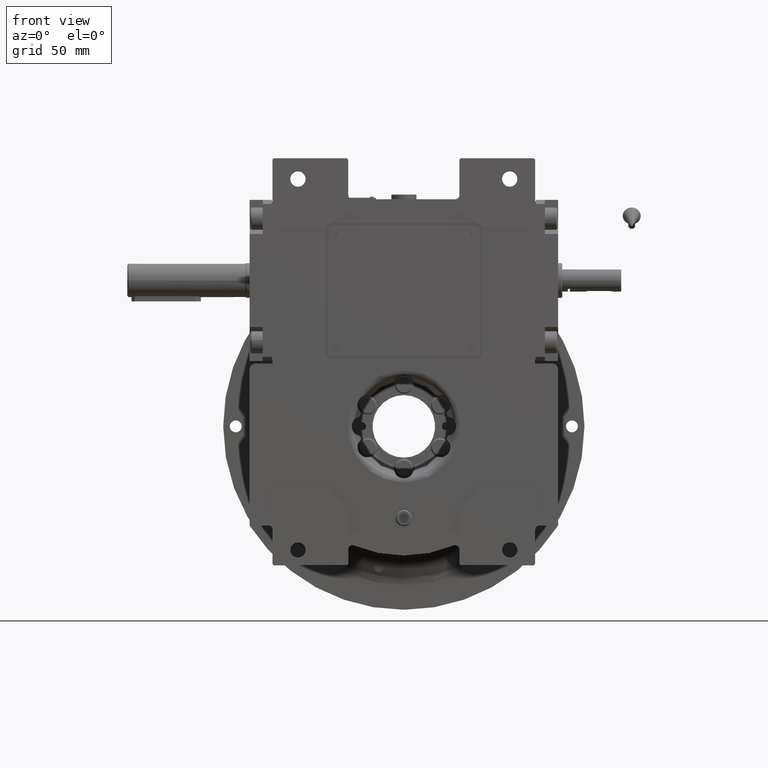
[diagram: clean part render]
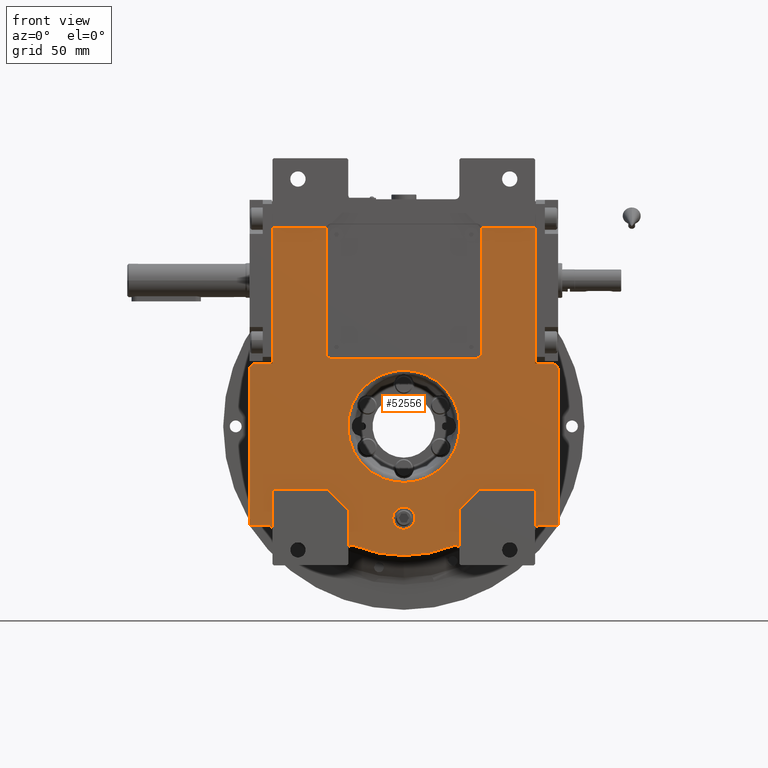
[diagram: same view with one face highlighted and labeled with its STEP entity id]
A machine part, front view. The second image highlights one B-rep face of the part: STEP entity #52556.
In plain terms, the highlighted planar face has unit normal (0, 1, 0).
Its self-contained STEP definition (entity closure, byte-faithful):
#14 = ORIENTED_EDGE ( 'NONE', *, *, #56504, .F. ) ;
#22 = CARTESIAN_POINT ( 'NONE',  ( -55.00000000000000000, -53.50000000000000000, -45.00000000000000000 ) ) ;
#26 = CARTESIAN_POINT ( 'NONE',  ( -40.00000000000000000, -53.50000000000000000, -88.58329413608420566 ) ) ;
#58 = VERTEX_POINT ( 'NONE', #35674 ) ;
#69 = EDGE_CURVE ( 'NONE', #64096, #28792, #26748, .T. ) ;
#255 = EDGE_CURVE ( 'NONE', #15879, #31343, #69145, .T. ) ;
#269 = CARTESIAN_POINT ( 'NONE',  ( 80.61913312125007280, -53.49999999999999289, -40.30955543265933727 ) ) ;
#311 = EDGE_CURVE ( 'NONE', #6843, #66975, #56473, .T. ) ;
#429 = EDGE_CURVE ( 'NONE', #57692, #28518, #12258, .T. ) ;
#553 = DIRECTION ( 'NONE',  ( 1.000000000000000000, 0.000000000000000000, 0.000000000000000000 ) ) ;
#784 = CARTESIAN_POINT ( 'NONE',  ( -94.50000000000000000, -53.50000000000000000, 143.0000000000000000 ) ) ;
#873 = CARTESIAN_POINT ( 'NONE',  ( 55.87298334620739837, -53.50000000000000000, 143.0000000000000000 ) ) ;
#1946 = VECTOR ( 'NONE', #48888, 1000.000000000000000 ) ;
#2247 = CIRCLE ( 'NONE', #14624, 8.000000000000000000 ) ;
#2671 = CARTESIAN_POINT ( 'NONE',  ( -94.50000000000000000, -53.50000000000000000, 143.0000000000000000 ) ) ;
#2685 = ORIENTED_EDGE ( 'NONE', *, *, #255, .T. ) ;
#2791 = ORIENTED_EDGE ( 'NONE', *, *, #37676, .F. ) ;
#2915 = EDGE_LOOP ( 'NONE', ( #6769, #38429, #18307, #58344, #7667, #17268, #60224, #42554, #39544, #15284, #30005, #10018, #37609, #19263, #47317, #2685, #30160, #44794, #14, #2791, #32277, #13685, #13972, #32912, #22061, #42801, #59138, #20429, #36277, #44545, #30306, #14693 ) ) ;
#3160 = DIRECTION ( 'NONE',  ( -3.469446951953617344E-15, 0.000000000000000000, 1.000000000000000000 ) ) ;
#3258 = DIRECTION ( 'NONE',  ( 0.000000000000000000, 0.000000000000000000, -1.000000000000000000 ) ) ;
#3777 = VERTEX_POINT ( 'NONE', #24952 ) ;
#4493 = CARTESIAN_POINT ( 'NONE',  ( -94.50000000000000000, -53.50000000000000000, 45.00000000000000000 ) ) ;
#4536 = DIRECTION ( 'NONE',  ( 0.000000000000000000, -1.000000000000000000, 0.000000000000000000 ) ) ;
#5000 = EDGE_CURVE ( 'NONE', #64902, #67322, #51930, .T. ) ;
#5072 = DIRECTION ( 'NONE',  ( -0.3854166666666672403, 0.000000000000000000, -0.9227426472508764022 ) ) ;
#5321 = DIRECTION ( 'NONE',  ( 1.000000000000000000, 0.000000000000000000, 0.000000000000000000 ) ) ;
#5530 = CARTESIAN_POINT ( 'NONE',  ( -1.264761546777279996E-10, -53.50000000000000000, 40.30959420574835406 ) ) ;
#5677 = CARTESIAN_POINT ( 'NONE',  ( 94.50000000000000000, -53.50000000000000000, 45.00000000000000000 ) ) ;
#5702 = AXIS2_PLACEMENT_3D ( 'NONE', #68303, #13867, #3258 ) ;
#5874 = LINE ( 'NONE', #53345, #45240 ) ;
#5944 = CARTESIAN_POINT ( 'NONE',  ( 0.000000000000000000, -53.50000000000000000, 0.000000000000000000 ) ) ;
#6124 = VERTEX_POINT ( 'NONE', #21029 ) ;
#6371 = CARTESIAN_POINT ( 'NONE',  ( -107.0000000000000000, -53.50000000000000000, 45.00000000000000000 ) ) ;
#6597 = AXIS2_PLACEMENT_3D ( 'NONE', #25558, #26256, #52278 ) ;
#6769 = ORIENTED_EDGE ( 'NONE', *, *, #47731, .F. ) ;
#6843 = VERTEX_POINT ( 'NONE', #66082 ) ;
#7371 = VECTOR ( 'NONE', #10866, 1000.000000000000000 ) ;
#7667 = ORIENTED_EDGE ( 'NONE', *, *, #23091, .F. ) ;
#7956 = DIRECTION ( 'NONE',  ( -1.000000000000000000, 0.000000000000000000, 0.000000000000000000 ) ) ;
#8343 = ORIENTED_EDGE ( 'NONE', *, *, #45667, .T. ) ;
#8453 = CARTESIAN_POINT ( 'NONE',  ( -97.50000000000000000, -53.50000000000000000, -74.43528539874409944 ) ) ;
#8794 = DIRECTION ( 'NONE',  ( -1.000000000000000000, 0.000000000000000000, 1.734723475976808672E-15 ) ) ;
#8969 = VERTEX_POINT ( 'NONE', #69517 ) ;
#9081 = VECTOR ( 'NONE', #45423, 1000.000000000000000 ) ;
#9098 = DIRECTION ( 'NONE',  ( -0.7071067811865474617, 0.000000000000000000, -0.7071067811865474617 ) ) ;
#9841 = CARTESIAN_POINT ( 'NONE',  ( -94.50000000000000000, -53.50000000000000000, -45.00000000000000000 ) ) ;
#9882 = DIRECTION ( 'NONE',  ( -0.3854166666666676289, 0.000000000000000000, 0.9227426472508761801 ) ) ;
#10018 = ORIENTED_EDGE ( 'NONE', *, *, #63386, .F. ) ;
#10152 = VECTOR ( 'NONE', #62166, 1000.000000000000000 ) ;
#10518 = CARTESIAN_POINT ( 'NONE',  ( -51.99999999999900524, -53.50000000000000000, 142.0000000000000000 ) ) ;
#10589 = LINE ( 'NONE', #54164, #1946 ) ;
#10866 = DIRECTION ( 'NONE',  ( 0.000000000000000000, 0.000000000000000000, -1.000000000000000000 ) ) ;
#11921 = EDGE_CURVE ( 'NONE', #43197, #18846, #25990, .T. ) ;
#11977 = CARTESIAN_POINT ( 'NONE',  ( -52.00000000000000000, -53.50000000000000000, 49.00000000000000000 ) ) ;
#12258 = LINE ( 'NONE', #21762, #48945 ) ;
#12360 = DIRECTION ( 'NONE',  ( 0.000000000000000000, 1.000000000000000000, 0.000000000000000000 ) ) ;
#12486 = DIRECTION ( 'NONE',  ( 0.000000000000000000, 0.000000000000000000, 1.000000000000000000 ) ) ;
#12765 = VECTOR ( 'NONE', #67526, 1000.000000000000114 ) ;
#13089 = LINE ( 'NONE', #46096, #33932 ) ;
#13386 = LINE ( 'NONE', #11977, #42911 ) ;
#13396 = EDGE_CURVE ( 'NONE', #14154, #43197, #10589, .T. ) ;
#13685 = ORIENTED_EDGE ( 'NONE', *, *, #29331, .F. ) ;
#13867 = DIRECTION ( 'NONE',  ( 0.000000000000000000, -1.000000000000000000, 0.000000000000000000 ) ) ;
#13972 = ORIENTED_EDGE ( 'NONE', *, *, #50986, .T. ) ;
#14154 = VERTEX_POINT ( 'NONE', #873 ) ;
#14205 = CARTESIAN_POINT ( 'NONE',  ( 40.00000000000000000, -53.50000000000000000, -88.58329413608420566 ) ) ;
#14400 = LINE ( 'NONE', #57275, #26482 ) ;
#14623 = CARTESIAN_POINT ( 'NONE',  ( 1.421085471520200056E-14, -53.50000000000000000, -4.263256414560599853E-14 ) ) ;
#14624 = AXIS2_PLACEMENT_3D ( 'NONE', #42636, #35378, #7956 ) ;
#14637 = CARTESIAN_POINT ( 'NONE',  ( -1.264761546777279996E-10, -53.50000000000000000, 40.30959420574835406 ) ) ;
#14656 = DIRECTION ( 'NONE',  ( 1.000000000000000000, 0.000000000000000000, 1.387778780781246883E-14 ) ) ;
#14693 = ORIENTED_EDGE ( 'NONE', *, *, #44663, .F. ) ;
#14805 = DIRECTION ( 'NONE',  ( 0.000000000000000000, -1.000000000000000000, 0.000000000000000000 ) ) ;
#14869 = VECTOR ( 'NONE', #47401, 1000.000000000000000 ) ;
#15012 = CARTESIAN_POINT ( 'NONE',  ( -94.50000000000000000, -53.50000000000000000, -45.00000000000000000 ) ) ;
#15142 = DIRECTION ( 'NONE',  ( 0.000000000000000000, 0.000000000000000000, -1.000000000000000000 ) ) ;
#15284 = ORIENTED_EDGE ( 'NONE', *, *, #18270, .T. ) ;
#15347 = DIRECTION ( 'NONE',  ( 0.000000000000000000, -1.000000000000000000, 0.000000000000000000 ) ) ;
#15605 = CARTESIAN_POINT ( 'NONE',  ( 40.00000000000000000, -53.50000000000000000, -60.00000000000000000 ) ) ;
#15879 = VERTEX_POINT ( 'NONE', #26 ) ;
#16276 = CARTESIAN_POINT ( 'NONE',  ( 94.50000000000000000, -53.50000000000000000, -45.00000000000000000 ) ) ;
#17268 = ORIENTED_EDGE ( 'NONE', *, *, #68575, .F. ) ;
#17509 = EDGE_CURVE ( 'NONE', #15879, #19854, #25926, .T. ) ;
#17749 = CARTESIAN_POINT ( 'NONE',  ( -1.264761546777279996E-10, -53.50000000000000000, 40.30959420574835406 ) ) ;
#17958 = EDGE_CURVE ( 'NONE', #62111, #29963, #2247, .T. ) ;
#18270 = EDGE_CURVE ( 'NONE', #26042, #43378, #66842, .T. ) ;
#18307 = ORIENTED_EDGE ( 'NONE', *, *, #311, .F. ) ;
#18839 = VERTEX_POINT ( 'NONE', #23866 ) ;
#18846 = VERTEX_POINT ( 'NONE', #62861 ) ;
#19131 = CARTESIAN_POINT ( 'NONE',  ( -40.00000000000000000, -53.50000000000000000, -60.00000000000000000 ) ) ;
#19263 = ORIENTED_EDGE ( 'NONE', *, *, #69147, .F. ) ;
#19436 = VECTOR ( 'NONE', #51630, 1000.000000000000000 ) ;
#19663 = LINE ( 'NONE', #19997, #19436 ) ;
#19854 = VERTEX_POINT ( 'NONE', #19131 ) ;
#19997 = CARTESIAN_POINT ( 'NONE',  ( 94.50000000000000000, -53.50000000000000000, -74.43528539874399996 ) ) ;
#20012 = DIRECTION ( 'NONE',  ( -0.9682458365518610277, 0.000000000000000000, 0.2499999999999737432 ) ) ;
#20054 = DIRECTION ( 'NONE',  ( 0.000000000000000000, -1.000000000000000000, 0.000000000000000000 ) ) ;
#20328 = CIRCLE ( 'NONE', #5702, 3.999999999999996447 ) ;
#20423 =( BOUNDED_CURVE ( )  B_SPLINE_CURVE ( 3, ( #33581, #44483, #65889, #17749 ),
 .UNSPECIFIED., .F., .F. ) 
 B_SPLINE_CURVE_WITH_KNOTS ( ( 4, 4 ),
 ( 1.432582689913126872, 4.574174019572492256 ),
 .UNSPECIFIED. ) 
 CURVE ( )  GEOMETRIC_REPRESENTATION_ITEM ( )  RATIONAL_B_SPLINE_CURVE ( ( 1.000000000000000000, 0.3333337746434759108, 0.3333337746434759108, 1.000000000000000000 ) ) 
 REPRESENTATION_ITEM ( '' )  );
#20429 = ORIENTED_EDGE ( 'NONE', *, *, #11921, .F. ) ;
#20729 = CARTESIAN_POINT ( 'NONE',  ( 94.50000000000000000, -53.50000000000000000, 143.0000000000000000 ) ) ;
#21029 = CARTESIAN_POINT ( 'NONE',  ( 52.00000000000000000, -53.50000000000000000, 49.00000000000000000 ) ) ;
#21084 = PLANE ( 'NONE',  #61606 ) ;
#21362 = DIRECTION ( 'NONE',  ( 0.000000000000000000, 0.000000000000000000, -1.000000000000000000 ) ) ;
#21737 = CARTESIAN_POINT ( 'NONE',  ( 1.264666971694413862E-10, -53.50000000000000000, -40.30959420574829721 ) ) ;
#21762 = CARTESIAN_POINT ( 'NONE',  ( 97.50000000000000000, -53.50000000000000000, -71.43528539874399996 ) ) ;
#22061 = ORIENTED_EDGE ( 'NONE', *, *, #47032, .T. ) ;
#22364 = CIRCLE ( 'NONE', #31366, 92.99999999999995737 ) ;
#22681 = CARTESIAN_POINT ( 'NONE',  ( 8.000000000000000000, -53.50000000000000000, -66.00000000000000000 ) ) ;
#23009 = LINE ( 'NONE', #45186, #41364 ) ;
#23091 = EDGE_CURVE ( 'NONE', #59107, #8969, #48981, .T. ) ;
#23574 = DIRECTION ( 'NONE',  ( 0.000000000000000000, 0.000000000000000000, 1.000000000000000000 ) ) ;
#23866 = CARTESIAN_POINT ( 'NONE',  ( 55.00000000000000000, -53.50000000000000000, -45.00000000000000000 ) ) ;
#24223 = VERTEX_POINT ( 'NONE', #62040 ) ;
#24559 = AXIS2_PLACEMENT_3D ( 'NONE', #57320, #20054, #8794 ) ;
#24952 = CARTESIAN_POINT ( 'NONE',  ( 107.0000000000000000, -53.50000000000000000, 45.00000000000000000 ) ) ;
#25340 = AXIS2_PLACEMENT_3D ( 'NONE', #47785, #69211, #53056 ) ;
#25558 = CARTESIAN_POINT ( 'NONE',  ( 97.50000000000000000, -53.50000000000000000, -74.43528539874399996 ) ) ;
#25926 = LINE ( 'NONE', #52638, #10152 ) ;
#25986 = ORIENTED_EDGE ( 'NONE', *, *, #68121, .F. ) ;
#25990 = LINE ( 'NONE', #20729, #59114 ) ;
#26042 = VERTEX_POINT ( 'NONE', #54648 ) ;
#26256 = DIRECTION ( 'NONE',  ( 0.000000000000000000, 1.000000000000000000, 0.000000000000000000 ) ) ;
#26434 = DIRECTION ( 'NONE',  ( 0.000000000000000000, -1.000000000000000000, 0.000000000000000000 ) ) ;
#26482 = VECTOR ( 'NONE', #9098, 1000.000000000000114 ) ;
#26654 = DIRECTION ( 'NONE',  ( 0.000000000000000000, 0.000000000000000000, -1.000000000000000000 ) ) ;
#26748 = LINE ( 'NONE', #22, #63495 ) ;
#26814 = DIRECTION ( 'NONE',  ( 1.000000000000000000, 0.000000000000000000, 0.000000000000000000 ) ) ;
#27400 = FACE_BOUND ( 'NONE', #52387, .T. ) ;
#27459 = DIRECTION ( 'NONE',  ( -1.000000000000000000, 0.000000000000000000, 0.000000000000000000 ) ) ;
#27501 = LINE ( 'NONE', #16276, #37659 ) ;
#27628 = CARTESIAN_POINT ( 'NONE',  ( -107.0000000000000000, -53.50000000000000000, 45.00000000000000000 ) ) ;
#28128 = DIRECTION ( 'NONE',  ( 1.000000000000000000, 0.000000000000000000, 0.000000000000000000 ) ) ;
#28518 = VERTEX_POINT ( 'NONE', #49831 ) ;
#28526 = CARTESIAN_POINT ( 'NONE',  ( -97.50000000000000000, -53.50000000000000000, -71.43528539874409944 ) ) ;
#28792 = VERTEX_POINT ( 'NONE', #15012 ) ;
#28857 = EDGE_CURVE ( 'NONE', #58, #14154, #54160, .T. ) ;
#28867 = ORIENTED_EDGE ( 'NONE', *, *, #37877, .T. ) ;
#28913 = AXIS2_PLACEMENT_3D ( 'NONE', #10518, #4536, #20012 ) ;
#28939 = VERTEX_POINT ( 'NONE', #62326 ) ;
#29331 = EDGE_CURVE ( 'NONE', #54028, #64544, #19663, .T. ) ;
#29464 = AXIS2_PLACEMENT_3D ( 'NONE', #31653, #14805, #52736 ) ;
#29603 = CARTESIAN_POINT ( 'NONE',  ( 97.50000000000000000, -53.50000000000000000, -71.43528539874399996 ) ) ;
#29963 = VERTEX_POINT ( 'NONE', #22681 ) ;
#30005 = ORIENTED_EDGE ( 'NONE', *, *, #66464, .T. ) ;
#30160 = ORIENTED_EDGE ( 'NONE', *, *, #52888, .T. ) ;
#30306 = ORIENTED_EDGE ( 'NONE', *, *, #62020, .F. ) ;
#30608 = CIRCLE ( 'NONE', #29464, 8.000000000000000000 ) ;
#30628 = AXIS2_PLACEMENT_3D ( 'NONE', #62578, #57317, #3160 ) ;
#31343 = VERTEX_POINT ( 'NONE', #39933 ) ;
#31366 = AXIS2_PLACEMENT_3D ( 'NONE', #14623, #37096, #5072 ) ;
#31653 = CARTESIAN_POINT ( 'NONE',  ( 8.881784197001250351E-16, -53.50000000000000000, -66.00000000000000000 ) ) ;
#32277 = ORIENTED_EDGE ( 'NONE', *, *, #36741, .F. ) ;
#32912 = ORIENTED_EDGE ( 'NONE', *, *, #429, .T. ) ;
#32973 = VERTEX_POINT ( 'NONE', #34589 ) ;
#33045 = DIRECTION ( 'NONE',  ( 1.000000000000000000, 0.000000000000000000, 0.000000000000000000 ) ) ;
#33581 = CARTESIAN_POINT ( 'NONE',  ( 1.264666971694413862E-10, -53.50000000000000000, -40.30959420574829721 ) ) ;
#33932 = VECTOR ( 'NONE', #34177, 1000.000000000000000 ) ;
#34177 = DIRECTION ( 'NONE',  ( 0.000000000000000000, 0.000000000000000000, -1.000000000000000000 ) ) ;
#34589 = CARTESIAN_POINT ( 'NONE',  ( 1.264666971694413862E-10, -53.50000000000000000, -40.30959420574829721 ) ) ;
#34888 = AXIS2_PLACEMENT_3D ( 'NONE', #8453, #12360, #23574 ) ;
#35140 = CARTESIAN_POINT ( 'NONE',  ( 94.50000000000000000, -53.50000000000000000, -74.43528539874399996 ) ) ;
#35378 = DIRECTION ( 'NONE',  ( 0.000000000000000000, -1.000000000000000000, 0.000000000000000000 ) ) ;
#35420 = EDGE_LOOP ( 'NONE', ( #25986, #39771 ) ) ;
#35443 = EDGE_CURVE ( 'NONE', #28939, #3777, #45685, .T. ) ;
#35674 = CARTESIAN_POINT ( 'NONE',  ( 56.00000000000000000, -53.50000000000000000, 142.0000000000000000 ) ) ;
#35725 = VECTOR ( 'NONE', #5321, 1000.000000000000000 ) ;
#36277 = ORIENTED_EDGE ( 'NONE', *, *, #13396, .F. ) ;
#36741 = EDGE_CURVE ( 'NONE', #64544, #18839, #27501, .T. ) ;
#36947 = VECTOR ( 'NONE', #553, 1000.000000000000000 ) ;
#37096 = DIRECTION ( 'NONE',  ( 0.000000000000000000, -1.000000000000000000, 0.000000000000000000 ) ) ;
#37117 = CARTESIAN_POINT ( 'NONE',  ( -94.50000000000000000, -53.50000000000000000, 45.00000000000000000 ) ) ;
#37609 = ORIENTED_EDGE ( 'NONE', *, *, #69, .F. ) ;
#37659 = VECTOR ( 'NONE', #68743, 1000.000000000000000 ) ;
#37676 = EDGE_CURVE ( 'NONE', #18839, #46911, #14400, .T. ) ;
#37702 = CARTESIAN_POINT ( 'NONE',  ( 107.0000000000000000, -53.50000000000000000, 41.00000000000000000 ) ) ;
#37877 = EDGE_CURVE ( 'NONE', #68872, #32973, #63935, .T. ) ;
#37900 = CIRCLE ( 'NONE', #28913, 4.000000000000978773 ) ;
#38429 = ORIENTED_EDGE ( 'NONE', *, *, #52330, .F. ) ;
#39078 = EDGE_CURVE ( 'NONE', #8969, #6843, #37900, .T. ) ;
#39544 = ORIENTED_EDGE ( 'NONE', *, *, #67868, .T. ) ;
#39771 = ORIENTED_EDGE ( 'NONE', *, *, #17958, .F. ) ;
#39933 = CARTESIAN_POINT ( 'NONE',  ( -35.84375000000000000, -53.50000000000000000, -85.81506619433150718 ) ) ;
#41364 = VECTOR ( 'NONE', #12486, 1000.000000000000000 ) ;
#42059 = VERTEX_POINT ( 'NONE', #51664 ) ;
#42265 = AXIS2_PLACEMENT_3D ( 'NONE', #37702, #26434, #59467 ) ;
#42554 = ORIENTED_EDGE ( 'NONE', *, *, #5000, .T. ) ;
#42636 = CARTESIAN_POINT ( 'NONE',  ( -8.881784197001250351E-16, -53.50000000000000000, -66.00000000000000000 ) ) ;
#42801 = ORIENTED_EDGE ( 'NONE', *, *, #35443, .T. ) ;
#42892 = FACE_BOUND ( 'NONE', #35420, .T. ) ;
#42911 = VECTOR ( 'NONE', #28128, 1000.000000000000000 ) ;
#42993 = AXIS2_PLACEMENT_3D ( 'NONE', #52575, #15347, #14656 ) ;
#43197 = VERTEX_POINT ( 'NONE', #44017 ) ;
#43263 = DIRECTION ( 'NONE',  ( 0.000000000000000000, 1.000000000000000000, 0.000000000000000000 ) ) ;
#43378 = VERTEX_POINT ( 'NONE', #28526 ) ;
#43909 = DIRECTION ( 'NONE',  ( 1.000000000000000000, 0.000000000000000000, 0.000000000000000000 ) ) ;
#44017 = CARTESIAN_POINT ( 'NONE',  ( 94.50000000000000000, -53.50000000000000000, 143.0000000000000000 ) ) ;
#44107 = VERTEX_POINT ( 'NONE', #55078 ) ;
#44483 = CARTESIAN_POINT ( 'NONE',  ( -80.61913312099703433, -53.49999999999999289, -40.30952624498007708 ) ) ;
#44536 = CARTESIAN_POINT ( 'NONE',  ( -55.00000000000000000, -53.50000000000000000, -45.00000000000000000 ) ) ;
#44545 = ORIENTED_EDGE ( 'NONE', *, *, #28857, .F. ) ;
#44620 = VERTEX_POINT ( 'NONE', #14205 ) ;
#44663 = EDGE_CURVE ( 'NONE', #6124, #24223, #20328, .T. ) ;
#44794 = ORIENTED_EDGE ( 'NONE', *, *, #46328, .T. ) ;
#45087 = VECTOR ( 'NONE', #53198, 1000.000000000000000 ) ;
#45186 = CARTESIAN_POINT ( 'NONE',  ( 56.00000000000000000, -53.50000000000000000, 53.00000000000000000 ) ) ;
#45240 = VECTOR ( 'NONE', #21362, 1000.000000000000000 ) ;
#45423 = DIRECTION ( 'NONE',  ( 1.000000000000000000, 0.000000000000000000, 0.000000000000000000 ) ) ;
#45667 = EDGE_CURVE ( 'NONE', #32973, #68872, #20423, .T. ) ;
#45685 = CIRCLE ( 'NONE', #42265, 4.000000000000003553 ) ;
#46096 = CARTESIAN_POINT ( 'NONE',  ( -111.0000000000000000, -53.50000000000000000, 41.00000000000000000 ) ) ;
#46272 = CIRCLE ( 'NONE', #51863, 3.000000000000003997 ) ;
#46328 = EDGE_CURVE ( 'NONE', #44107, #44620, #46272, .T. ) ;
#46911 = VERTEX_POINT ( 'NONE', #15605 ) ;
#47032 = EDGE_CURVE ( 'NONE', #28518, #28939, #59507, .T. ) ;
#47317 = ORIENTED_EDGE ( 'NONE', *, *, #17509, .F. ) ;
#47401 = DIRECTION ( 'NONE',  ( 0.000000000000000000, 0.000000000000000000, 1.000000000000000000 ) ) ;
#47457 = CARTESIAN_POINT ( 'NONE',  ( -56.00000000000000000, -53.50000000000000000, 142.0000000000000000 ) ) ;
#47731 = EDGE_CURVE ( 'NONE', #52950, #6124, #13386, .T. ) ;
#47785 = CARTESIAN_POINT ( 'NONE',  ( -37.00000000000000000, -53.50000000000000000, -88.58329413608420566 ) ) ;
#48453 = CARTESIAN_POINT ( 'NONE',  ( 80.61913312099713380, -53.49999999999999289, 40.30952624498025472 ) ) ;
#48597 = LINE ( 'NONE', #5677, #35725 ) ;
#48748 = LINE ( 'NONE', #27628, #36947 ) ;
#48888 = DIRECTION ( 'NONE',  ( 1.000000000000000000, 0.000000000000000000, 0.000000000000000000 ) ) ;
#48945 = VECTOR ( 'NONE', #43909, 1000.000000000000000 ) ;
#48981 = LINE ( 'NONE', #784, #69444 ) ;
#49831 = CARTESIAN_POINT ( 'NONE',  ( 111.0000000000000000, -53.50000000000000000, -71.43528539874399996 ) ) ;
#50986 = EDGE_CURVE ( 'NONE', #54028, #57692, #67230, .T. ) ;
#51493 = CARTESIAN_POINT ( 'NONE',  ( -56.00000000000000000, -53.50000000000000000, 53.00000000000000000 ) ) ;
#51630 = DIRECTION ( 'NONE',  ( 0.000000000000000000, 0.000000000000000000, 1.000000000000000000 ) ) ;
#51664 = CARTESIAN_POINT ( 'NONE',  ( -94.50000000000000000, -53.50000000000000000, -74.43528539874409944 ) ) ;
#51755 = CARTESIAN_POINT ( 'NONE',  ( 94.50000000000000000, -53.50000000000000000, -45.00000000000000000 ) ) ;
#51863 = AXIS2_PLACEMENT_3D ( 'NONE', #53104, #43263, #9882 ) ;
#51930 = CIRCLE ( 'NONE', #30628, 3.999999999999996447 ) ;
#52009 = EDGE_CURVE ( 'NONE', #18846, #3777, #48597, .T. ) ;
#52278 = DIRECTION ( 'NONE',  ( -1.000000000000000000, 0.000000000000000000, 0.000000000000000000 ) ) ;
#52330 = EDGE_CURVE ( 'NONE', #66975, #52950, #60486, .T. ) ;
#52387 = EDGE_LOOP ( 'NONE', ( #8343, #28867 ) ) ;
#52556 = ADVANCED_FACE ( 'NONE', ( #27400, #42892, #59728 ), #21084, .F. ) ;
#52575 = CARTESIAN_POINT ( 'NONE',  ( 51.99999999999940314, -53.50000000000000000, 142.0000000000000000 ) ) ;
#52638 = CARTESIAN_POINT ( 'NONE',  ( -40.00000000000000000, -53.50000000000000000, -88.58329413608420566 ) ) ;
#52653 = LINE ( 'NONE', #4493, #14869 ) ;
#52736 = DIRECTION ( 'NONE',  ( 1.000000000000000000, 0.000000000000000000, 0.000000000000000000 ) ) ;
#52888 = EDGE_CURVE ( 'NONE', #31343, #44107, #22364, .T. ) ;
#52950 = VERTEX_POINT ( 'NONE', #63471 ) ;
#53056 = DIRECTION ( 'NONE',  ( -1.000000000000000000, 0.000000000000000000, 4.625929269271481378E-15 ) ) ;
#53104 = CARTESIAN_POINT ( 'NONE',  ( 37.00000000000000000, -53.50000000000000000, -88.58329413608420566 ) ) ;
#53198 = DIRECTION ( 'NONE',  ( 6.319570704518680589E-16, 0.000000000000000000, 1.000000000000000000 ) ) ;
#53345 = CARTESIAN_POINT ( 'NONE',  ( 40.00000000000000000, -53.50000000000000000, -60.00000000000000000 ) ) ;
#53413 = DIRECTION ( 'NONE',  ( -0.000000000000000000, 1.000000000000000000, 0.000000000000000000 ) ) ;
#53779 = VECTOR ( 'NONE', #15142, 1000.000000000000000 ) ;
#54028 = VERTEX_POINT ( 'NONE', #35140 ) ;
#54160 = CIRCLE ( 'NONE', #42993, 4.000000000000572875 ) ;
#54164 = CARTESIAN_POINT ( 'NONE',  ( 55.87298334620739837, -53.50000000000000000, 143.0000000000000000 ) ) ;
#54648 = CARTESIAN_POINT ( 'NONE',  ( -111.0000000000000000, -53.50000000000000000, -71.43528539874409944 ) ) ;
#55078 = CARTESIAN_POINT ( 'NONE',  ( 35.84375000000000000, -53.50000000000000000, -85.81506619433150718 ) ) ;
#56473 = LINE ( 'NONE', #47457, #7371 ) ;
#56504 = EDGE_CURVE ( 'NONE', #46911, #44620, #5874, .T. ) ;
#57275 = CARTESIAN_POINT ( 'NONE',  ( 55.00000000000000000, -53.50000000000000000, -45.00000000000000000 ) ) ;
#57317 = DIRECTION ( 'NONE',  ( 0.000000000000000000, -1.000000000000000000, 0.000000000000000000 ) ) ;
#57320 = CARTESIAN_POINT ( 'NONE',  ( -52.00000000000000000, -53.50000000000000000, 53.00000000000000000 ) ) ;
#57692 = VERTEX_POINT ( 'NONE', #29603 ) ;
#58344 = ORIENTED_EDGE ( 'NONE', *, *, #39078, .F. ) ;
#58449 = CIRCLE ( 'NONE', #34888, 3.000000000000002665 ) ;
#59107 = VERTEX_POINT ( 'NONE', #2671 ) ;
#59114 = VECTOR ( 'NONE', #26654, 1000.000000000000000 ) ;
#59138 = ORIENTED_EDGE ( 'NONE', *, *, #52009, .F. ) ;
#59467 = DIRECTION ( 'NONE',  ( 1.000000000000000000, 0.000000000000000000, 5.204170427930416550E-15 ) ) ;
#59507 = LINE ( 'NONE', #65481, #45087 ) ;
#59728 = FACE_OUTER_BOUND ( 'NONE', #2915, .T. ) ;
#59837 = CARTESIAN_POINT ( 'NONE',  ( -40.00000000000000000, -53.50000000000000000, -60.00000000000000000 ) ) ;
#60224 = ORIENTED_EDGE ( 'NONE', *, *, #62569, .F. ) ;
#60486 = CIRCLE ( 'NONE', #24559, 3.999999999999996447 ) ;
#60509 = CARTESIAN_POINT ( 'NONE',  ( -111.0000000000000000, -53.50000000000000000, -71.43528539874409944 ) ) ;
#60590 = CARTESIAN_POINT ( 'NONE',  ( -111.0000000000000000, -53.50000000000000000, 41.00000000000000000 ) ) ;
#61606 = AXIS2_PLACEMENT_3D ( 'NONE', #5944, #53413, #33045 ) ;
#61868 = VERTEX_POINT ( 'NONE', #37117 ) ;
#62020 = EDGE_CURVE ( 'NONE', #24223, #58, #23009, .T. ) ;
#62040 = CARTESIAN_POINT ( 'NONE',  ( 56.00000000000000000, -53.50000000000000000, 53.00000000000000000 ) ) ;
#62111 = VERTEX_POINT ( 'NONE', #67630 ) ;
#62166 = DIRECTION ( 'NONE',  ( 0.000000000000000000, 0.000000000000000000, 1.000000000000000000 ) ) ;
#62326 = CARTESIAN_POINT ( 'NONE',  ( 111.0000000000000000, -53.50000000000000000, 41.00000000000000000 ) ) ;
#62569 = EDGE_CURVE ( 'NONE', #64902, #61868, #48748, .T. ) ;
#62578 = CARTESIAN_POINT ( 'NONE',  ( -107.0000000000000000, -53.50000000000000000, 41.00000000000000000 ) ) ;
#62861 = CARTESIAN_POINT ( 'NONE',  ( 94.50000000000000000, -53.50000000000000000, 45.00000000000000000 ) ) ;
#63386 = EDGE_CURVE ( 'NONE', #28792, #42059, #69220, .T. ) ;
#63471 = CARTESIAN_POINT ( 'NONE',  ( -52.00000000000000000, -53.50000000000000000, 49.00000000000000000 ) ) ;
#63495 = VECTOR ( 'NONE', #27459, 1000.000000000000000 ) ;
#63935 =( BOUNDED_CURVE ( )  B_SPLINE_CURVE ( 3, ( #5530, #48453, #269, #21737 ),
 .UNSPECIFIED., .F., .F. ) 
 B_SPLINE_CURVE_WITH_KNOTS ( ( 4, 4 ),
 ( 4.574175343352308687, 7.715766673011676957 ),
 .UNSPECIFIED. ) 
 CURVE ( )  GEOMETRIC_REPRESENTATION_ITEM ( )  RATIONAL_B_SPLINE_CURVE ( ( 1.000000000000000000, 0.3333337746434750226, 0.3333337746434750226, 1.000000000000000000 ) ) 
 REPRESENTATION_ITEM ( '' )  );
#64096 = VERTEX_POINT ( 'NONE', #44536 ) ;
#64544 = VERTEX_POINT ( 'NONE', #51755 ) ;
#64902 = VERTEX_POINT ( 'NONE', #6371 ) ;
#65114 = LINE ( 'NONE', #59837, #12765 ) ;
#65481 = CARTESIAN_POINT ( 'NONE',  ( 111.0000000000000000, -53.50000000000000000, -71.43528539874399996 ) ) ;
#65889 = CARTESIAN_POINT ( 'NONE',  ( -80.61913312124997333, -53.49999999999999289, 40.30955543265923069 ) ) ;
#66082 = CARTESIAN_POINT ( 'NONE',  ( -56.00000000000000000, -53.50000000000000000, 142.0000000000000000 ) ) ;
#66464 = EDGE_CURVE ( 'NONE', #43378, #42059, #58449, .T. ) ;
#66842 = LINE ( 'NONE', #60509, #9081 ) ;
#66975 = VERTEX_POINT ( 'NONE', #51493 ) ;
#67230 = CIRCLE ( 'NONE', #6597, 3.000000000000002665 ) ;
#67322 = VERTEX_POINT ( 'NONE', #60590 ) ;
#67526 = DIRECTION ( 'NONE',  ( -0.7071067811865474617, 0.000000000000000000, 0.7071067811865474617 ) ) ;
#67630 = CARTESIAN_POINT ( 'NONE',  ( -8.000000000000000000, -53.50000000000000000, -66.00000000000000000 ) ) ;
#67868 = EDGE_CURVE ( 'NONE', #67322, #26042, #13089, .T. ) ;
#68121 = EDGE_CURVE ( 'NONE', #29963, #62111, #30608, .T. ) ;
#68303 = CARTESIAN_POINT ( 'NONE',  ( 52.00000000000000000, -53.50000000000000000, 53.00000000000000000 ) ) ;
#68575 = EDGE_CURVE ( 'NONE', #61868, #59107, #52653, .T. ) ;
#68743 = DIRECTION ( 'NONE',  ( -1.000000000000000000, 0.000000000000000000, 0.000000000000000000 ) ) ;
#68872 = VERTEX_POINT ( 'NONE', #14637 ) ;
#69145 = CIRCLE ( 'NONE', #25340, 3.000000000000002665 ) ;
#69147 = EDGE_CURVE ( 'NONE', #19854, #64096, #65114, .T. ) ;
#69211 = DIRECTION ( 'NONE',  ( 0.000000000000000000, 1.000000000000000000, 0.000000000000000000 ) ) ;
#69220 = LINE ( 'NONE', #9841, #53779 ) ;
#69444 = VECTOR ( 'NONE', #26814, 1000.000000000000000 ) ;
#69517 = CARTESIAN_POINT ( 'NONE',  ( -55.87298334620739837, -53.50000000000000000, 143.0000000000000000 ) ) ;